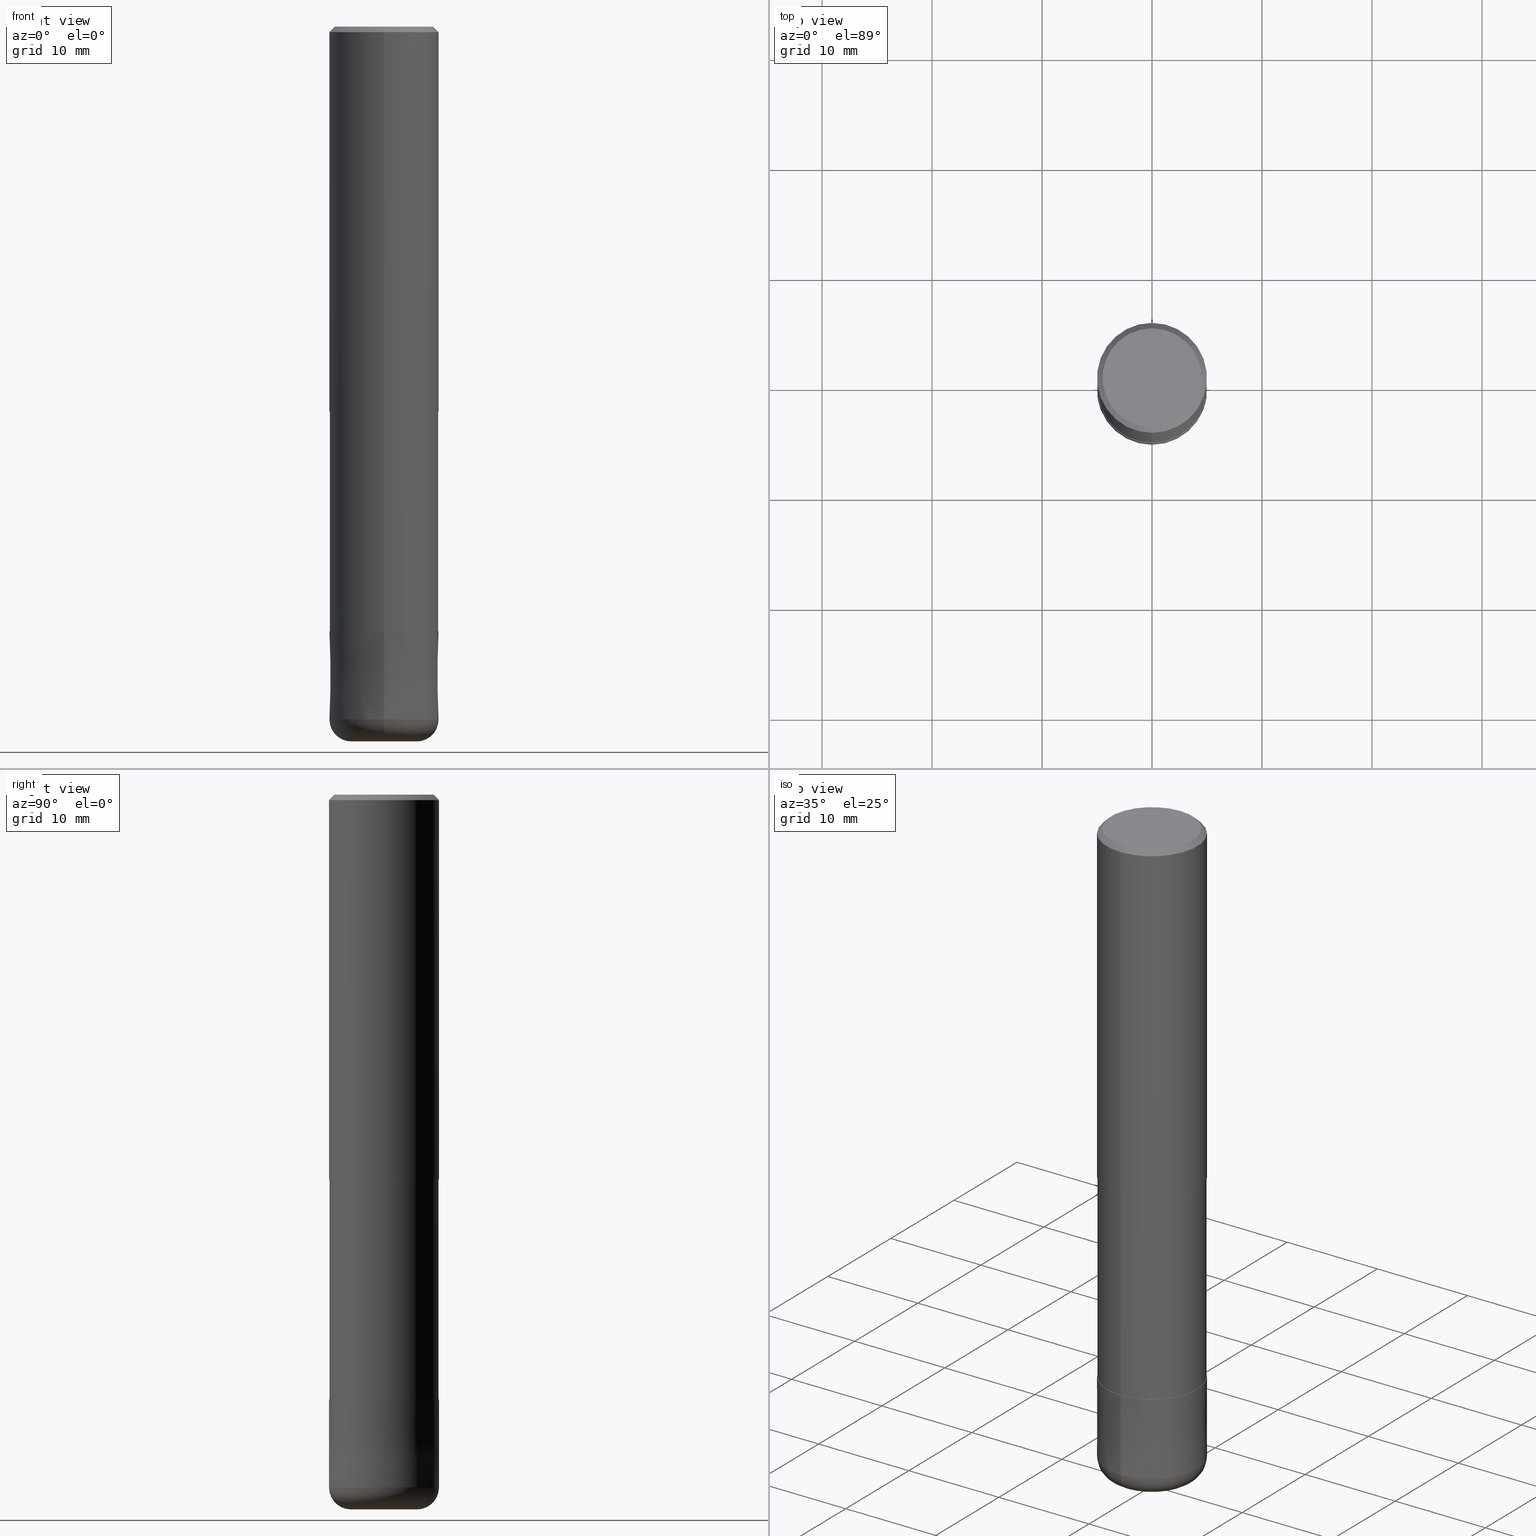
[diagram: canonical four-view strip — front | top / right | iso, engineering-drawing reading convention]
A machine part, canonical four-view strip (front | top / right | iso — engineering-drawing reading convention). The complete STEP part file that produces these views, byte-faithful:
ISO-10303-21;
HEADER;
FILE_DESCRIPTION(('no description'),'unknown implementation level');
FILE_NAME('HRRS4100-20-30S-Huellk.stp','  ',('CIMSOURCE GmbH'),('CADClick - KiM GmbH - www.kimweb.de'),'unknown preprocess','ACIS','unknown authorization');
FILE_SCHEMA(('automotive_design'));
ENDSEC;
DATA;
#1=MECHANICAL_DESIGN_GEOMETRIC_PRESENTATION_REPRESENTATION(' ',(#14,#15,#16,#17,#18,#19,#20,#21,#22,#23,#24,#25,#26,#27,#28,#29,#30,#31,#32,#33,#34,#35,#36,#37,#38,#39,#40,#41,#42,#43,#44,#45,#46,#47,#48,#49,#50,#51,#52,#53,#54,#55,#56,#57,#58,#59,#60,#61,#62,#63,#64,#65,#66,#67,#68,#69,#70,#71,#72),#10);
#2=PRODUCT_DEFINITION_CONTEXT('',#73,'design');
#3=APPLICATION_PROTOCOL_DEFINITION('INTERNATIONAL STANDARD','automotive_design',1994,#73);
#4=PRODUCT_CATEGORY_RELATIONSHIP('NONE','NONE',#74,#75);
#5=SHAPE_DEFINITION_REPRESENTATION(#76,#77);
#6=PRODUCT_DEFINITION_CONTEXT('',#78,'design');
#7=APPLICATION_PROTOCOL_DEFINITION('INTERNATIONAL STANDARD','automotive_design',1994,#78);
#8=PRODUCT_CATEGORY_RELATIONSHIP('NONE','NONE',#79,#80);
#9=SHAPE_DEFINITION_REPRESENTATION(#81,#82);
#10= (GEOMETRIC_REPRESENTATION_CONTEXT(3)GLOBAL_UNCERTAINTY_ASSIGNED_CONTEXT((#85))GLOBAL_UNIT_ASSIGNED_CONTEXT((#87,#88,#89))REPRESENTATION_CONTEXT('NONE','WORKSPACE'));
#14=STYLED_ITEM('',(#91),#92);
#15=STYLED_ITEM('',(#93),#94);
#16=STYLED_ITEM('',(#95),#96);
#17=STYLED_ITEM('',(#97),#98);
#18=STYLED_ITEM('',(#99),#100);
#19=STYLED_ITEM('',(#101),#102);
#20=STYLED_ITEM('',(#103),#104);
#21=STYLED_ITEM('',(#105),#106);
#22=STYLED_ITEM('',(#107),#108);
#23=STYLED_ITEM('',(#109),#110);
#24=STYLED_ITEM('',(#111),#112);
#25=STYLED_ITEM('',(#113),#114);
#26=STYLED_ITEM('',(#115),#116);
#27=STYLED_ITEM('',(#117),#118);
#28=STYLED_ITEM('',(#119),#120);
#29=STYLED_ITEM('',(#121),#122);
#30=STYLED_ITEM('',(#123),#124);
#31=STYLED_ITEM('',(#125),#126);
#32=STYLED_ITEM('',(#127),#128);
#33=STYLED_ITEM('',(#129),#130);
#34=STYLED_ITEM('',(#131),#132);
#35=STYLED_ITEM('',(#133),#134);
#36=STYLED_ITEM('',(#135),#136);
#37=STYLED_ITEM('',(#137),#138);
#38=STYLED_ITEM('',(#139),#140);
#39=STYLED_ITEM('',(#141),#142);
#40=STYLED_ITEM('',(#143),#144);
#41=STYLED_ITEM('',(#145),#146);
#42=STYLED_ITEM('',(#147),#148);
#43=STYLED_ITEM('',(#149),#150);
#44=STYLED_ITEM('',(#151),#152);
#45=STYLED_ITEM('',(#153),#154);
#46=STYLED_ITEM('',(#155),#156);
#47=STYLED_ITEM('',(#157),#158);
#48=STYLED_ITEM('',(#159),#160);
#49=STYLED_ITEM('',(#161),#162);
#50=STYLED_ITEM('',(#163),#164);
#51=STYLED_ITEM('',(#165),#166);
#52=STYLED_ITEM('',(#167),#168);
#53=STYLED_ITEM('',(#169),#170);
#54=STYLED_ITEM('',(#171),#172);
#55=STYLED_ITEM('',(#173),#174);
#56=STYLED_ITEM('',(#175),#176);
#57=STYLED_ITEM('',(#177),#178);
#58=STYLED_ITEM('',(#179),#180);
#59=STYLED_ITEM('',(#181),#182);
#60=STYLED_ITEM('',(#183),#184);
#61=STYLED_ITEM('',(#185),#186);
#62=STYLED_ITEM('',(#187),#188);
#63=STYLED_ITEM('',(#189),#190);
#64=STYLED_ITEM('',(#191),#192);
#65=STYLED_ITEM('',(#193),#194);
#66=STYLED_ITEM('',(#195),#196);
#67=STYLED_ITEM('',(#197),#198);
#68=STYLED_ITEM('',(#199),#200);
#69=STYLED_ITEM('',(#201),#202);
#70=STYLED_ITEM('',(#203),#204);
#71=STYLED_ITEM('',(#205),#206);
#72=STYLED_ITEM('',(#207),#208);
#73=APPLICATION_CONTEXT(' ');
#74=PRODUCT_CATEGORY('part','NONE');
#75=PRODUCT_RELATED_PRODUCT_CATEGORY('detail',' ',(#209));
#76=PRODUCT_DEFINITION_SHAPE('NONE','NONE',#210);
#77=ADVANCED_BREP_SHAPE_REPRESENTATION('1',(#154,#211),#10);
#78=APPLICATION_CONTEXT(' ');
#79=PRODUCT_CATEGORY('part','NONE');
#80=PRODUCT_RELATED_PRODUCT_CATEGORY('detail',' ',(#212));
#81=PRODUCT_DEFINITION_SHAPE('NONE','NONE',#213);
#82=ADVANCED_BREP_SHAPE_REPRESENTATION('2',(#146,#214),#10);
#85=UNCERTAINTY_MEASURE_WITH_UNIT(LENGTH_MEASURE(1.0E-006),#87,'','');
#87= (CONVERSION_BASED_UNIT('MILLIMETRE',#217)LENGTH_UNIT()NAMED_UNIT(#220));
#88= (NAMED_UNIT(#222)PLANE_ANGLE_UNIT()SI_UNIT($,.RADIAN.));
#89= (NAMED_UNIT(#222)SOLID_ANGLE_UNIT()SI_UNIT($,.STERADIAN.));
#91=PRESENTATION_STYLE_ASSIGNMENT((#228));
#92=EDGE_CURVE('',#124,#136,#229,.T.);
#93=PRESENTATION_STYLE_ASSIGNMENT((#230));
#94=EDGE_CURVE('',#192,#186,#231,.T.);
#95=PRESENTATION_STYLE_ASSIGNMENT((#232));
#96=EDGE_CURVE('',#190,#206,#233,.T.);
#97=PRESENTATION_STYLE_ASSIGNMENT((#234));
#98=EDGE_CURVE('',#130,#208,#235,.T.);
#99=PRESENTATION_STYLE_ASSIGNMENT((#236));
#100=EDGE_CURVE('',#156,#192,#237,.T.);
#101=PRESENTATION_STYLE_ASSIGNMENT((#238));
#102=ADVANCED_FACE('',(#239),#240,.T.);
#103=PRESENTATION_STYLE_ASSIGNMENT((#241));
#104=ADVANCED_FACE('',(#242),#243,.T.);
#105=PRESENTATION_STYLE_ASSIGNMENT((#244));
#106=ADVANCED_FACE('',(#245),#246,.T.);
#107=PRESENTATION_STYLE_ASSIGNMENT((#247));
#108=VERTEX_POINT('',#248);
#109=PRESENTATION_STYLE_ASSIGNMENT((#249));
#110=ADVANCED_FACE('',(#250),#251,.T.);
#111=PRESENTATION_STYLE_ASSIGNMENT((#252));
#112=EDGE_CURVE('',#108,#116,#253,.T.);
#113=PRESENTATION_STYLE_ASSIGNMENT((#254));
#114=ADVANCED_FACE('',(#255),#256,.T.);
#115=PRESENTATION_STYLE_ASSIGNMENT((#257));
#116=VERTEX_POINT('',#258);
#117=PRESENTATION_STYLE_ASSIGNMENT((#259));
#118=EDGE_CURVE('',#136,#124,#260,.T.);
#119=PRESENTATION_STYLE_ASSIGNMENT((#261));
#120=ADVANCED_FACE('',(#262),#263,.T.);
#121=PRESENTATION_STYLE_ASSIGNMENT((#264));
#122=EDGE_CURVE('',#208,#130,#265,.T.);
#123=PRESENTATION_STYLE_ASSIGNMENT((#266));
#124=VERTEX_POINT('',#267);
#125=PRESENTATION_STYLE_ASSIGNMENT((#268));
#126=ADVANCED_FACE('',(#269),#270,.T.);
#127=PRESENTATION_STYLE_ASSIGNMENT((#271));
#128=EDGE_CURVE('',#186,#192,#272,.T.);
#129=PRESENTATION_STYLE_ASSIGNMENT((#273));
#130=VERTEX_POINT('',#274);
#131=PRESENTATION_STYLE_ASSIGNMENT((#275));
#132=VERTEX_POINT('',#276);
#133=PRESENTATION_STYLE_ASSIGNMENT((#277));
#134=ADVANCED_FACE('',(#278),#279,.T.);
#135=PRESENTATION_STYLE_ASSIGNMENT((#280));
#136=VERTEX_POINT('',#281);
#137=PRESENTATION_STYLE_ASSIGNMENT((#282));
#138=ADVANCED_FACE('',(#283),#284,.T.);
#139=PRESENTATION_STYLE_ASSIGNMENT((#285));
#140=EDGE_CURVE('',#124,#208,#286,.T.);
#141=PRESENTATION_STYLE_ASSIGNMENT((#287));
#142=EDGE_CURVE('',#188,#162,#288,.T.);
#143=PRESENTATION_STYLE_ASSIGNMENT((#289));
#144=VERTEX_POINT('',#290);
#145=PRESENTATION_STYLE_ASSIGNMENT((#291));
#146=MANIFOLD_SOLID_BREP('2',#292);
#147=PRESENTATION_STYLE_ASSIGNMENT((#293));
#148=VERTEX_POINT('',#294);
#149=PRESENTATION_STYLE_ASSIGNMENT((#295));
#150=EDGE_CURVE('',#188,#186,#296,.T.);
#151=PRESENTATION_STYLE_ASSIGNMENT((#297));
#152=EDGE_CURVE('',#116,#148,#298,.T.);
#153=PRESENTATION_STYLE_ASSIGNMENT((#299));
#154=MANIFOLD_SOLID_BREP('1',#300);
#155=PRESENTATION_STYLE_ASSIGNMENT((#301));
#156=VERTEX_POINT('',#302);
#157=PRESENTATION_STYLE_ASSIGNMENT((#303));
#158=EDGE_CURVE('',#144,#156,#304,.T.);
#159=PRESENTATION_STYLE_ASSIGNMENT((#305));
#160=EDGE_CURVE('',#206,#190,#306,.T.);
#161=PRESENTATION_STYLE_ASSIGNMENT((#307));
#162=VERTEX_POINT('',#308);
#163=PRESENTATION_STYLE_ASSIGNMENT((#309));
#164=EDGE_CURVE('',#132,#108,#310,.T.);
#165=PRESENTATION_STYLE_ASSIGNMENT((#311));
#166=EDGE_CURVE('',#132,#190,#312,.T.);
#167=PRESENTATION_STYLE_ASSIGNMENT((#313));
#168=EDGE_CURVE('',#148,#132,#314,.T.);
#169=PRESENTATION_STYLE_ASSIGNMENT((#315));
#170=EDGE_CURVE('',#132,#148,#316,.T.);
#171=PRESENTATION_STYLE_ASSIGNMENT((#317));
#172=ADVANCED_FACE('',(#318),#319,.T.);
#173=PRESENTATION_STYLE_ASSIGNMENT((#320));
#174=ADVANCED_FACE('',(#321,#322),#323,.T.);
#175=PRESENTATION_STYLE_ASSIGNMENT((#324));
#176=EDGE_CURVE('',#186,#144,#325,.T.);
#177=PRESENTATION_STYLE_ASSIGNMENT((#326));
#178=ADVANCED_FACE('',(#327),#328,.T.);
#179=PRESENTATION_STYLE_ASSIGNMENT((#329));
#180=EDGE_CURVE('',#116,#108,#330,.T.);
#181=PRESENTATION_STYLE_ASSIGNMENT((#331));
#182=EDGE_CURVE('',#192,#162,#332,.T.);
#183=PRESENTATION_STYLE_ASSIGNMENT((#333));
#184=ADVANCED_FACE('',(#334),#335,.T.);
#185=PRESENTATION_STYLE_ASSIGNMENT((#336));
#186=VERTEX_POINT('',#337);
#187=PRESENTATION_STYLE_ASSIGNMENT((#338));
#188=VERTEX_POINT('',#339);
#189=PRESENTATION_STYLE_ASSIGNMENT((#340));
#190=VERTEX_POINT('',#341);
#191=PRESENTATION_STYLE_ASSIGNMENT((#342));
#192=VERTEX_POINT('',#343);
#193=PRESENTATION_STYLE_ASSIGNMENT((#344));
#194=ADVANCED_FACE('',(#345),#346,.T.);
#195=PRESENTATION_STYLE_ASSIGNMENT((#347));
#196=EDGE_CURVE('',#156,#144,#348,.T.);
#197=PRESENTATION_STYLE_ASSIGNMENT((#349));
#198=EDGE_CURVE('',#130,#136,#350,.T.);
#199=PRESENTATION_STYLE_ASSIGNMENT((#351));
#200=ADVANCED_FACE('',(#352),#353,.T.);
#201=PRESENTATION_STYLE_ASSIGNMENT((#354));
#202=EDGE_CURVE('',#162,#188,#355,.T.);
#203=PRESENTATION_STYLE_ASSIGNMENT((#356));
#204=EDGE_CURVE('',#206,#148,#357,.T.);
#205=PRESENTATION_STYLE_ASSIGNMENT((#358));
#206=VERTEX_POINT('',#359);
#207=PRESENTATION_STYLE_ASSIGNMENT((#360));
#208=VERTEX_POINT('',#361);
#209=PRODUCT('1','1','PART-1-DESC',(#362));
#210=PRODUCT_DEFINITION('NONE','NONE',#363,#2);
#211=AXIS2_PLACEMENT_3D('',#364,#365,#366);
#212=PRODUCT('2','2','PART-2-DESC',(#367));
#213=PRODUCT_DEFINITION('NONE','NONE',#368,#6);
#214=AXIS2_PLACEMENT_3D('',#369,#370,#371);
#217=LENGTH_MEASURE_WITH_UNIT(LENGTH_MEASURE(1.0),#372);
#220=DIMENSIONAL_EXPONENTS(1.0,0.0,0.0,0.0,0.0,0.0,0.0);
#222=DIMENSIONAL_EXPONENTS(0.0,0.0,0.0,0.0,0.0,0.0,0.0);
#228=CURVE_STYLE('',#373,POSITIVE_LENGTH_MEASURE(1.0E-006),#374);
#229=CIRCLE('',#375,4.95995);
#230=CURVE_STYLE('',#376,POSITIVE_LENGTH_MEASURE(1.0E-006),#377);
#231=CIRCLE('',#378,5.0);
#232=CURVE_STYLE('',#379,POSITIVE_LENGTH_MEASURE(1.0E-006),#380);
#233=CIRCLE('',#381,3.0);
#234=CURVE_STYLE('',#382,POSITIVE_LENGTH_MEASURE(1.0E-006),#383);
#235=CIRCLE('',#384,4.95995);
#236=CURVE_STYLE('',#385,POSITIVE_LENGTH_MEASURE(1.0E-006),#386);
#237=LINE('',#387,#388);
#238=SURFACE_STYLE_USAGE(.BOTH.,#389);
#239=FACE_OUTER_BOUND('',#390,.T.);
#240=PLANE('',#391);
#241=SURFACE_STYLE_USAGE(.BOTH.,#392);
#242=FACE_OUTER_BOUND('',#393,.T.);
#243=PLANE('',#394);
#244=SURFACE_STYLE_USAGE(.BOTH.,#395);
#245=FACE_OUTER_BOUND('',#396,.T.);
#246=CYLINDRICAL_SURFACE('',#397,5.0);
#247=POINT_STYLE(' ',#398,POSITIVE_LENGTH_MEASURE(1.0E-006),#399);
#248=CARTESIAN_POINT('',(6.1229093084765E-016,-4.9999,-55.0));
#249=SURFACE_STYLE_USAGE(.BOTH.,#400);
#250=FACE_OUTER_BOUND('',#401,.T.);
#251=CONICAL_SURFACE('',#402,4.75,0.785398163397448);
#252=CURVE_STYLE('',#403,POSITIVE_LENGTH_MEASURE(1.0E-006),#404);
#253=CIRCLE('',#405,4.9999);
#254=SURFACE_STYLE_USAGE(.BOTH.,#406);
#255=FACE_OUTER_BOUND('',#407,.T.);
#256=TOROIDAL_SURFACE('',#408,3.0,2.0);
#257=POINT_STYLE(' ',#409,POSITIVE_LENGTH_MEASURE(1.0E-006),#410);
#258=CARTESIAN_POINT('',(0.0,4.9999,-55.0));
#259=CURVE_STYLE('',#411,POSITIVE_LENGTH_MEASURE(1.0E-006),#412);
#260=CIRCLE('',#413,4.95995);
#261=SURFACE_STYLE_USAGE(.BOTH.,#414);
#262=FACE_OUTER_BOUND('',#415,.T.);
#263=CONICAL_SURFACE('',#416,4.99995,1.24999999993198E-005);
#264=CURVE_STYLE('',#417,POSITIVE_LENGTH_MEASURE(1.0E-006),#418);
#265=CIRCLE('',#419,4.95995);
#266=POINT_STYLE(' ',#420,POSITIVE_LENGTH_MEASURE(1.0E-006),#421);
#267=CARTESIAN_POINT('',(6.0739862846413E-016,-4.95995,-55.0));
#268=SURFACE_STYLE_USAGE(.BOTH.,#422);
#269=FACE_OUTER_BOUND('',#423,.T.);
#270=TOROIDAL_SURFACE('',#424,3.0,2.0);
#271=CURVE_STYLE('',#425,POSITIVE_LENGTH_MEASURE(1.0E-006),#426);
#272=CIRCLE('',#427,5.0);
#273=POINT_STYLE(' ',#428,POSITIVE_LENGTH_MEASURE(1.0E-006),#429);
#274=CARTESIAN_POINT('',(0.0,4.95995,-35.0));
#275=POINT_STYLE(' ',#430,POSITIVE_LENGTH_MEASURE(1.0E-006),#431);
#276=CARTESIAN_POINT('',(6.12303176911189E-016,-5.0,-63.0));
#277=SURFACE_STYLE_USAGE(.BOTH.,#432);
#278=FACE_OUTER_BOUND('',#433,.T.);
#279=CYLINDRICAL_SURFACE('',#434,4.95995);
#280=POINT_STYLE(' ',#435,POSITIVE_LENGTH_MEASURE(1.0E-006),#436);
#281=CARTESIAN_POINT('',(0.0,4.95995,-55.0));
#282=SURFACE_STYLE_USAGE(.BOTH.,#437);
#283=FACE_OUTER_BOUND('',#438,.T.);
#284=PLANE('',#439);
#285=CURVE_STYLE('',#440,POSITIVE_LENGTH_MEASURE(1.0E-006),#441);
#286=LINE('',#442,#443);
#287=CURVE_STYLE('',#444,POSITIVE_LENGTH_MEASURE(1.0E-006),#445);
#288=CIRCLE('',#446,5.0);
#289=POINT_STYLE(' ',#447,POSITIVE_LENGTH_MEASURE(1.0E-006),#448);
#290=CARTESIAN_POINT('',(5.5107285922007E-016,-4.5,0.0));
#291=SURFACE_STYLE_USAGE(.BOTH.,#449);
#292=CLOSED_SHELL('',(#114,#200,#104,#120,#126,#138));
#293=POINT_STYLE(' ',#450,POSITIVE_LENGTH_MEASURE(1.0E-006),#451);
#294=CARTESIAN_POINT('',(0.0,5.0,-63.0));
#295=CURVE_STYLE('',#452,POSITIVE_LENGTH_MEASURE(1.0E-006),#453);
#296=LINE('',#454,#455);
#297=CURVE_STYLE('',#456,POSITIVE_LENGTH_MEASURE(1.0E-006),#457);
#298=LINE('',#458,#459);
#299=SURFACE_STYLE_USAGE(.BOTH.,#460);
#300=CLOSED_SHELL('',(#178,#106,#184,#174,#172,#110,#194,#134,#102));
#301=POINT_STYLE(' ',#461,POSITIVE_LENGTH_MEASURE(1.0E-006),#462);
#302=CARTESIAN_POINT('',(0.0,4.5,0.0));
#303=CURVE_STYLE('',#463,POSITIVE_LENGTH_MEASURE(1.0E-006),#464);
#304=CIRCLE('',#465,4.5);
#305=CURVE_STYLE('',#466,POSITIVE_LENGTH_MEASURE(1.0E-006),#467);
#306=CIRCLE('',#468,3.0);
#307=POINT_STYLE(' ',#469,POSITIVE_LENGTH_MEASURE(1.0E-006),#470);
#308=CARTESIAN_POINT('',(0.0,5.0,-35.0));
#309=CURVE_STYLE('',#471,POSITIVE_LENGTH_MEASURE(1.0E-006),#472);
#310=LINE('',#473,#474);
#311=CURVE_STYLE('',#475,POSITIVE_LENGTH_MEASURE(1.0E-006),#476);
#312=CIRCLE('',#477,2.0);
#313=CURVE_STYLE('',#478,POSITIVE_LENGTH_MEASURE(1.0E-006),#479);
#314=CIRCLE('',#480,5.0);
#315=CURVE_STYLE('',#481,POSITIVE_LENGTH_MEASURE(1.0E-006),#482);
#316=CIRCLE('',#483,5.0);
#317=SURFACE_STYLE_USAGE(.BOTH.,#484);
#318=FACE_OUTER_BOUND('',#485,.T.);
#319=PLANE('',#486);
#320=SURFACE_STYLE_USAGE(.BOTH.,#487);
#321=FACE_OUTER_BOUND('',#488,.T.);
#322=FACE_BOUND('',#489,.T.);
#323=PLANE('',#490);
#324=CURVE_STYLE('',#491,POSITIVE_LENGTH_MEASURE(1.0E-006),#492);
#325=LINE('',#493,#494);
#326=SURFACE_STYLE_USAGE(.BOTH.,#495);
#327=FACE_OUTER_BOUND('',#496,.T.);
#328=CYLINDRICAL_SURFACE('',#497,4.95995);
#329=CURVE_STYLE('',#498,POSITIVE_LENGTH_MEASURE(1.0E-006),#499);
#330=CIRCLE('',#500,4.9999);
#331=CURVE_STYLE('',#501,POSITIVE_LENGTH_MEASURE(1.0E-006),#502);
#332=LINE('',#503,#504);
#333=SURFACE_STYLE_USAGE(.BOTH.,#505);
#334=FACE_OUTER_BOUND('',#506,.T.);
#335=CONICAL_SURFACE('',#507,4.75,0.785398163397448);
#336=POINT_STYLE(' ',#508,POSITIVE_LENGTH_MEASURE(1.0E-006),#509);
#337=CARTESIAN_POINT('',(6.12303176911189E-016,-5.0,-0.5));
#338=POINT_STYLE(' ',#510,POSITIVE_LENGTH_MEASURE(1.0E-006),#511);
#339=CARTESIAN_POINT('',(6.12303176911189E-016,-5.0,-35.0));
#340=POINT_STYLE(' ',#512,POSITIVE_LENGTH_MEASURE(1.0E-006),#513);
#341=CARTESIAN_POINT('',(3.67381906146713E-016,-3.0,-65.0));
#342=POINT_STYLE(' ',#514,POSITIVE_LENGTH_MEASURE(1.0E-006),#515);
#343=CARTESIAN_POINT('',(0.0,5.0,-0.5));
#344=SURFACE_STYLE_USAGE(.BOTH.,#516);
#345=FACE_OUTER_BOUND('',#517,.T.);
#346=CYLINDRICAL_SURFACE('',#518,5.0);
#347=CURVE_STYLE('',#519,POSITIVE_LENGTH_MEASURE(1.0E-006),#520);
#348=CIRCLE('',#521,4.5);
#349=CURVE_STYLE('',#522,POSITIVE_LENGTH_MEASURE(1.0E-006),#523);
#350=LINE('',#524,#525);
#351=SURFACE_STYLE_USAGE(.BOTH.,#526);
#352=FACE_OUTER_BOUND('',#527,.T.);
#353=CONICAL_SURFACE('',#528,4.99995,1.24999999993198E-005);
#354=CURVE_STYLE('',#529,POSITIVE_LENGTH_MEASURE(1.0E-006),#530);
#355=CIRCLE('',#531,5.0);
#356=CURVE_STYLE('',#532,POSITIVE_LENGTH_MEASURE(1.0E-006),#533);
#357=CIRCLE('',#534,2.0);
#358=POINT_STYLE(' ',#535,POSITIVE_LENGTH_MEASURE(1.0E-006),#536);
#359=CARTESIAN_POINT('',(0.0,3.0,-65.0));
#360=POINT_STYLE(' ',#537,POSITIVE_LENGTH_MEASURE(1.0E-006),#538);
#361=CARTESIAN_POINT('',(6.0739862846413E-016,-4.95995,-35.0));
#362=PRODUCT_CONTEXT('',#73,'mechanical');
#363=PRODUCT_DEFINITION_FORMATION_WITH_SPECIFIED_SOURCE(' ','NONE',#209,.NOT_KNOWN.);
#364=CARTESIAN_POINT('',(0.0,0.0,0.0));
#365=DIRECTION('',(0.0,0.0,1.0));
#366=DIRECTION('',(1.0,0.0,0.0));
#367=PRODUCT_CONTEXT('',#78,'mechanical');
#368=PRODUCT_DEFINITION_FORMATION_WITH_SPECIFIED_SOURCE(' ','NONE',#212,.NOT_KNOWN.);
#369=CARTESIAN_POINT('',(0.0,0.0,0.0));
#370=DIRECTION('',(0.0,0.0,1.0));
#371=DIRECTION('',(1.0,0.0,0.0));
#372= (NAMED_UNIT(#220)LENGTH_UNIT()SI_UNIT(.MILLI.,.METRE.));
#373=DRAUGHTING_PRE_DEFINED_CURVE_FONT('continuous');
#374=COLOUR_RGB('',0.498039215803146,0.498039215803146,0.498039215803146);
#375=AXIS2_PLACEMENT_3D('',#540,#541,#542);
#376=DRAUGHTING_PRE_DEFINED_CURVE_FONT('continuous');
#377=COLOUR_RGB('',0.498039215803146,0.498039215803146,0.498039215803146);
#378=AXIS2_PLACEMENT_3D('',#543,#544,#545);
#379=DRAUGHTING_PRE_DEFINED_CURVE_FONT('continuous');
#380=COLOUR_RGB('',0.800000011920929,0.800000011920929,0.800000011920929);
#381=AXIS2_PLACEMENT_3D('',#546,#547,#548);
#382=DRAUGHTING_PRE_DEFINED_CURVE_FONT('continuous');
#383=COLOUR_RGB('',0.498039215803146,0.498039215803146,0.498039215803146);
#384=AXIS2_PLACEMENT_3D('',#549,#550,#551);
#385=DRAUGHTING_PRE_DEFINED_CURVE_FONT('continuous');
#386=COLOUR_RGB('',0.498039215803146,0.498039215803146,0.498039215803146);
#387=CARTESIAN_POINT('',(-5.81688018065629E-016,4.75,-0.25));
#388=VECTOR('',#552,1.0);
#389=SURFACE_SIDE_STYLE('',(#553));
#390=EDGE_LOOP('',(#554,#555));
#391=AXIS2_PLACEMENT_3D('',#556,#557,#558);
#392=SURFACE_SIDE_STYLE('',(#559));
#393=EDGE_LOOP('',(#560,#561));
#394=AXIS2_PLACEMENT_3D('',#562,#563,#564);
#395=SURFACE_SIDE_STYLE('',(#565));
#396=EDGE_LOOP('',(#566,#567,#568,#569));
#397=AXIS2_PLACEMENT_3D('',#570,#571,#572);
#398=PRE_DEFINED_MARKER('');
#399=COLOUR_RGB('',0.800000011920929,0.800000011920929,0.800000011920929);
#400=SURFACE_SIDE_STYLE('',(#573));
#401=EDGE_LOOP('',(#574,#575,#576,#577));
#402=AXIS2_PLACEMENT_3D('',#578,#579,#580);
#403=DRAUGHTING_PRE_DEFINED_CURVE_FONT('continuous');
#404=COLOUR_RGB('',0.800000011920929,0.800000011920929,0.800000011920929);
#405=AXIS2_PLACEMENT_3D('',#581,#582,#583);
#406=SURFACE_SIDE_STYLE('',(#584));
#407=EDGE_LOOP('',(#585,#586,#587,#588));
#408=AXIS2_PLACEMENT_3D('',#589,#590,#591);
#409=PRE_DEFINED_MARKER('');
#410=COLOUR_RGB('',0.800000011920929,0.800000011920929,0.800000011920929);
#411=DRAUGHTING_PRE_DEFINED_CURVE_FONT('continuous');
#412=COLOUR_RGB('',0.498039215803146,0.498039215803146,0.498039215803146);
#413=AXIS2_PLACEMENT_3D('',#592,#593,#594);
#414=SURFACE_SIDE_STYLE('',(#595));
#415=EDGE_LOOP('',(#596,#597,#598,#599));
#416=AXIS2_PLACEMENT_3D('',#600,#601,#602);
#417=DRAUGHTING_PRE_DEFINED_CURVE_FONT('continuous');
#418=COLOUR_RGB('',0.498039215803146,0.498039215803146,0.498039215803146);
#419=AXIS2_PLACEMENT_3D('',#603,#604,#605);
#420=PRE_DEFINED_MARKER('');
#421=COLOUR_RGB('',0.498039215803146,0.498039215803146,0.498039215803146);
#422=SURFACE_SIDE_STYLE('',(#606));
#423=EDGE_LOOP('',(#607,#608,#609,#610));
#424=AXIS2_PLACEMENT_3D('',#611,#612,#613);
#425=DRAUGHTING_PRE_DEFINED_CURVE_FONT('continuous');
#426=COLOUR_RGB('',0.498039215803146,0.498039215803146,0.498039215803146);
#427=AXIS2_PLACEMENT_3D('',#614,#615,#616);
#428=PRE_DEFINED_MARKER('');
#429=COLOUR_RGB('',0.498039215803146,0.498039215803146,0.498039215803146);
#430=PRE_DEFINED_MARKER('');
#431=COLOUR_RGB('',0.800000011920929,0.800000011920929,0.800000011920929);
#432=SURFACE_SIDE_STYLE('',(#617));
#433=EDGE_LOOP('',(#618,#619,#620,#621));
#434=AXIS2_PLACEMENT_3D('',#622,#623,#624);
#435=PRE_DEFINED_MARKER('');
#436=COLOUR_RGB('',0.498039215803146,0.498039215803146,0.498039215803146);
#437=SURFACE_SIDE_STYLE('',(#625));
#438=EDGE_LOOP('',(#626,#627));
#439=AXIS2_PLACEMENT_3D('',#628,#629,#630);
#440=DRAUGHTING_PRE_DEFINED_CURVE_FONT('continuous');
#441=COLOUR_RGB('',0.498039215803146,0.498039215803146,0.498039215803146);
#442=CARTESIAN_POINT('',(6.0739862846413E-016,-4.95995,-45.0));
#443=VECTOR('',#631,1.0);
#444=DRAUGHTING_PRE_DEFINED_CURVE_FONT('continuous');
#445=COLOUR_RGB('',0.498039215803146,0.498039215803146,0.498039215803146);
#446=AXIS2_PLACEMENT_3D('',#632,#633,#634);
#447=PRE_DEFINED_MARKER('');
#448=COLOUR_RGB('',0.498039215803146,0.498039215803146,0.498039215803146);
#449=SURFACE_SIDE_STYLE('',(#635));
#450=PRE_DEFINED_MARKER('');
#451=COLOUR_RGB('',0.800000011920929,0.800000011920929,0.800000011920929);
#452=DRAUGHTING_PRE_DEFINED_CURVE_FONT('continuous');
#453=COLOUR_RGB('',0.498039215803146,0.498039215803146,0.498039215803146);
#454=CARTESIAN_POINT('',(6.12303176911189E-016,-5.0,-17.75));
#455=VECTOR('',#636,1.0);
#456=DRAUGHTING_PRE_DEFINED_CURVE_FONT('continuous');
#457=COLOUR_RGB('',0.800000011920929,0.800000011920929,0.800000011920929);
#458=CARTESIAN_POINT('',(-6.1229705387942E-016,4.99995,-59.0));
#459=VECTOR('',#637,1.0);
#460=SURFACE_SIDE_STYLE('',(#638));
#461=PRE_DEFINED_MARKER('');
#462=COLOUR_RGB('',0.498039215803146,0.498039215803146,0.498039215803146);
#463=DRAUGHTING_PRE_DEFINED_CURVE_FONT('continuous');
#464=COLOUR_RGB('',0.498039215803146,0.498039215803146,0.498039215803146);
#465=AXIS2_PLACEMENT_3D('',#639,#640,#641);
#466=DRAUGHTING_PRE_DEFINED_CURVE_FONT('continuous');
#467=COLOUR_RGB('',0.800000011920929,0.800000011920929,0.800000011920929);
#468=AXIS2_PLACEMENT_3D('',#642,#643,#644);
#469=PRE_DEFINED_MARKER('');
#470=COLOUR_RGB('',0.498039215803146,0.498039215803146,0.498039215803146);
#471=DRAUGHTING_PRE_DEFINED_CURVE_FONT('continuous');
#472=COLOUR_RGB('',0.800000011920929,0.800000011920929,0.800000011920929);
#473=CARTESIAN_POINT('',(6.1229705387942E-016,-4.99995,-59.0));
#474=VECTOR('',#645,1.0);
#475=DRAUGHTING_PRE_DEFINED_CURVE_FONT('continuous');
#476=COLOUR_RGB('',0.800000011920929,0.800000011920929,0.800000011920929);
#477=AXIS2_PLACEMENT_3D('',#646,#647,#648);
#478=DRAUGHTING_PRE_DEFINED_CURVE_FONT('continuous');
#479=COLOUR_RGB('',0.800000011920929,0.800000011920929,0.800000011920929);
#480=AXIS2_PLACEMENT_3D('',#649,#650,#651);
#481=DRAUGHTING_PRE_DEFINED_CURVE_FONT('continuous');
#482=COLOUR_RGB('',0.800000011920929,0.800000011920929,0.800000011920929);
#483=AXIS2_PLACEMENT_3D('',#652,#653,#654);
#484=SURFACE_SIDE_STYLE('',(#655));
#485=EDGE_LOOP('',(#656,#657));
#486=AXIS2_PLACEMENT_3D('',#658,#659,#660);
#487=SURFACE_SIDE_STYLE('',(#661));
#488=EDGE_LOOP('',(#662,#663));
#489=EDGE_LOOP('',(#664,#665));
#490=AXIS2_PLACEMENT_3D('',#666,#667,#668);
#491=DRAUGHTING_PRE_DEFINED_CURVE_FONT('continuous');
#492=COLOUR_RGB('',0.498039215803146,0.498039215803146,0.498039215803146);
#493=CARTESIAN_POINT('',(5.81688018065629E-016,-4.75,-0.25));
#494=VECTOR('',#669,1.0);
#495=SURFACE_SIDE_STYLE('',(#670));
#496=EDGE_LOOP('',(#671,#672,#673,#674));
#497=AXIS2_PLACEMENT_3D('',#675,#676,#677);
#498=DRAUGHTING_PRE_DEFINED_CURVE_FONT('continuous');
#499=COLOUR_RGB('',0.800000011920929,0.800000011920929,0.800000011920929);
#500=AXIS2_PLACEMENT_3D('',#678,#679,#680);
#501=DRAUGHTING_PRE_DEFINED_CURVE_FONT('continuous');
#502=COLOUR_RGB('',0.498039215803146,0.498039215803146,0.498039215803146);
#503=CARTESIAN_POINT('',(-6.12303176911189E-016,5.0,-17.75));
#504=VECTOR('',#681,1.0);
#505=SURFACE_SIDE_STYLE('',(#682));
#506=EDGE_LOOP('',(#683,#684,#685,#686));
#507=AXIS2_PLACEMENT_3D('',#687,#688,#689);
#508=PRE_DEFINED_MARKER('');
#509=COLOUR_RGB('',0.498039215803146,0.498039215803146,0.498039215803146);
#510=PRE_DEFINED_MARKER('');
#511=COLOUR_RGB('',0.498039215803146,0.498039215803146,0.498039215803146);
#512=PRE_DEFINED_MARKER('');
#513=COLOUR_RGB('',0.800000011920929,0.800000011920929,0.800000011920929);
#514=PRE_DEFINED_MARKER('');
#515=COLOUR_RGB('',0.498039215803146,0.498039215803146,0.498039215803146);
#516=SURFACE_SIDE_STYLE('',(#690));
#517=EDGE_LOOP('',(#691,#692,#693,#694));
#518=AXIS2_PLACEMENT_3D('',#695,#696,#697);
#519=DRAUGHTING_PRE_DEFINED_CURVE_FONT('continuous');
#520=COLOUR_RGB('',0.498039215803146,0.498039215803146,0.498039215803146);
#521=AXIS2_PLACEMENT_3D('',#698,#699,#700);
#522=DRAUGHTING_PRE_DEFINED_CURVE_FONT('continuous');
#523=COLOUR_RGB('',0.498039215803146,0.498039215803146,0.498039215803146);
#524=CARTESIAN_POINT('',(-6.0739862846413E-016,4.95995,-45.0));
#525=VECTOR('',#701,1.0);
#526=SURFACE_SIDE_STYLE('',(#702));
#527=EDGE_LOOP('',(#703,#704,#705,#706));
#528=AXIS2_PLACEMENT_3D('',#707,#708,#709);
#529=DRAUGHTING_PRE_DEFINED_CURVE_FONT('continuous');
#530=COLOUR_RGB('',0.498039215803146,0.498039215803146,0.498039215803146);
#531=AXIS2_PLACEMENT_3D('',#710,#711,#712);
#532=DRAUGHTING_PRE_DEFINED_CURVE_FONT('continuous');
#533=COLOUR_RGB('',0.800000011920929,0.800000011920929,0.800000011920929);
#534=AXIS2_PLACEMENT_3D('',#713,#714,#715);
#535=PRE_DEFINED_MARKER('');
#536=COLOUR_RGB('',0.800000011920929,0.800000011920929,0.800000011920929);
#537=PRE_DEFINED_MARKER('');
#538=COLOUR_RGB('',0.498039215803146,0.498039215803146,0.498039215803146);
#540=CARTESIAN_POINT('',(0.0,0.0,-55.0));
#541=DIRECTION('',(0.0,0.0,-1.0));
#542=DIRECTION('',(0.0,1.0,0.0));
#543=CARTESIAN_POINT('',(0.0,0.0,-0.5));
#544=DIRECTION('',(0.0,0.0,-1.0));
#545=DIRECTION('',(0.0,1.0,0.0));
#546=CARTESIAN_POINT('',(0.0,0.0,-65.0));
#547=DIRECTION('',(0.0,0.0,-1.0));
#548=DIRECTION('',(0.0,1.0,0.0));
#549=CARTESIAN_POINT('',(0.0,0.0,-35.0));
#550=DIRECTION('',(0.0,0.0,-1.0));
#551=DIRECTION('',(0.0,1.0,0.0));
#552=DIRECTION('',(-8.65927457071936E-017,0.707106781186548,-0.707106781186548));
#553=SURFACE_STYLE_FILL_AREA(#716);
#554=ORIENTED_EDGE('',*,*,#118,.T.);
#555=ORIENTED_EDGE('',*,*,#92,.T.);
#556=CARTESIAN_POINT('',(0.0,2.479975,-55.0));
#557=DIRECTION('',(0.0,0.0,-1.0));
#558=DIRECTION('',(0.0,1.0,0.0));
#559=SURFACE_STYLE_FILL_AREA(#717);
#560=ORIENTED_EDGE('',*,*,#180,.F.);
#561=ORIENTED_EDGE('',*,*,#112,.F.);
#562=CARTESIAN_POINT('',(0.0,2.49995,-55.0));
#563=DIRECTION('',(-0.0,0.0,1.0));
#564=DIRECTION('',(0.0,-1.0,0.0));
#565=SURFACE_STYLE_FILL_AREA(#718);
#566=ORIENTED_EDGE('',*,*,#182,.F.);
#567=ORIENTED_EDGE('',*,*,#94,.T.);
#568=ORIENTED_EDGE('',*,*,#150,.F.);
#569=ORIENTED_EDGE('',*,*,#202,.F.);
#570=CARTESIAN_POINT('',(0.0,0.0,-17.75));
#571=DIRECTION('',(-0.0,-0.0,1.0));
#572=DIRECTION('',(0.0,1.0,0.0));
#573=SURFACE_STYLE_FILL_AREA(#719);
#574=ORIENTED_EDGE('',*,*,#100,.T.);
#575=ORIENTED_EDGE('',*,*,#128,.F.);
#576=ORIENTED_EDGE('',*,*,#176,.T.);
#577=ORIENTED_EDGE('',*,*,#158,.T.);
#578=CARTESIAN_POINT('',(0.0,0.0,-0.25));
#579=DIRECTION('',(0.0,-0.0,-1.0));
#580=DIRECTION('',(0.0,1.0,0.0));
#581=CARTESIAN_POINT('',(0.0,0.0,-55.0));
#582=DIRECTION('',(0.0,0.0,-1.0));
#583=DIRECTION('',(0.0,1.0,0.0));
#584=SURFACE_STYLE_FILL_AREA(#720);
#585=ORIENTED_EDGE('',*,*,#166,.F.);
#586=ORIENTED_EDGE('',*,*,#170,.T.);
#587=ORIENTED_EDGE('',*,*,#204,.F.);
#588=ORIENTED_EDGE('',*,*,#96,.F.);
#589=CARTESIAN_POINT('',(0.0,0.0,-63.0));
#590=DIRECTION('',(0.0,0.0,-1.0));
#591=DIRECTION('',(0.0,-1.0,0.0));
#592=CARTESIAN_POINT('',(0.0,0.0,-55.0));
#593=DIRECTION('',(0.0,0.0,-1.0));
#594=DIRECTION('',(0.0,1.0,0.0));
#595=SURFACE_STYLE_FILL_AREA(#721);
#596=ORIENTED_EDGE('',*,*,#152,.T.);
#597=ORIENTED_EDGE('',*,*,#170,.F.);
#598=ORIENTED_EDGE('',*,*,#164,.T.);
#599=ORIENTED_EDGE('',*,*,#112,.T.);
#600=CARTESIAN_POINT('',(0.0,0.0,-59.0));
#601=DIRECTION('',(0.0,-0.0,-1.0));
#602=DIRECTION('',(0.0,1.0,0.0));
#603=CARTESIAN_POINT('',(0.0,0.0,-35.0));
#604=DIRECTION('',(0.0,0.0,-1.0));
#605=DIRECTION('',(0.0,1.0,0.0));
#606=SURFACE_STYLE_FILL_AREA(#722);
#607=ORIENTED_EDGE('',*,*,#166,.T.);
#608=ORIENTED_EDGE('',*,*,#160,.F.);
#609=ORIENTED_EDGE('',*,*,#204,.T.);
#610=ORIENTED_EDGE('',*,*,#168,.T.);
#611=CARTESIAN_POINT('',(0.0,0.0,-63.0));
#612=DIRECTION('',(0.0,0.0,-1.0));
#613=DIRECTION('',(0.0,-1.0,0.0));
#614=CARTESIAN_POINT('',(0.0,0.0,-0.5));
#615=DIRECTION('',(0.0,0.0,-1.0));
#616=DIRECTION('',(0.0,1.0,0.0));
#617=SURFACE_STYLE_FILL_AREA(#723);
#618=ORIENTED_EDGE('',*,*,#198,.T.);
#619=ORIENTED_EDGE('',*,*,#92,.F.);
#620=ORIENTED_EDGE('',*,*,#140,.T.);
#621=ORIENTED_EDGE('',*,*,#122,.T.);
#622=CARTESIAN_POINT('',(0.0,0.0,-45.0));
#623=DIRECTION('',(-0.0,-0.0,1.0));
#624=DIRECTION('',(0.0,1.0,0.0));
#625=SURFACE_STYLE_FILL_AREA(#724);
#626=ORIENTED_EDGE('',*,*,#160,.T.);
#627=ORIENTED_EDGE('',*,*,#96,.T.);
#628=CARTESIAN_POINT('',(0.0,1.5,-65.0));
#629=DIRECTION('',(0.0,0.0,-1.0));
#630=DIRECTION('',(0.0,1.0,0.0));
#631=DIRECTION('',(-0.0,-0.0,1.0));
#632=CARTESIAN_POINT('',(0.0,0.0,-35.0));
#633=DIRECTION('',(0.0,0.0,-1.0));
#634=DIRECTION('',(0.0,1.0,0.0));
#635=SURFACE_STYLE_FILL_AREA(#725);
#636=DIRECTION('',(-0.0,-0.0,1.0));
#637=DIRECTION('',(-1.53075794215481E-021,1.24999999989943E-005,-0.999999999921875));
#638=SURFACE_STYLE_FILL_AREA(#726);
#639=CARTESIAN_POINT('',(0.0,0.0,0.0));
#640=DIRECTION('',(0.0,0.0,-1.0));
#641=DIRECTION('',(0.0,1.0,0.0));
#642=CARTESIAN_POINT('',(0.0,0.0,-65.0));
#643=DIRECTION('',(0.0,0.0,-1.0));
#644=DIRECTION('',(0.0,1.0,0.0));
#645=DIRECTION('',(-1.53075794215481E-021,1.24999999989943E-005,0.999999999921875));
#646=CARTESIAN_POINT('',(3.67381906146713E-016,-3.0,-63.0));
#647=DIRECTION('',(1.0,1.22460635382238E-016,0.0));
#648=DIRECTION('',(1.22460635382238E-016,-1.0,-0.0));
#649=CARTESIAN_POINT('',(0.0,0.0,-63.0));
#650=DIRECTION('',(0.0,0.0,-1.0));
#651=DIRECTION('',(0.0,1.0,0.0));
#652=CARTESIAN_POINT('',(0.0,0.0,-63.0));
#653=DIRECTION('',(0.0,0.0,-1.0));
#654=DIRECTION('',(0.0,1.0,0.0));
#655=SURFACE_STYLE_FILL_AREA(#727);
#656=ORIENTED_EDGE('',*,*,#196,.F.);
#657=ORIENTED_EDGE('',*,*,#158,.F.);
#658=CARTESIAN_POINT('',(0.0,2.25,0.0));
#659=DIRECTION('',(-0.0,0.0,1.0));
#660=DIRECTION('',(0.0,-1.0,0.0));
#661=SURFACE_STYLE_FILL_AREA(#728);
#662=ORIENTED_EDGE('',*,*,#202,.T.);
#663=ORIENTED_EDGE('',*,*,#142,.T.);
#664=ORIENTED_EDGE('',*,*,#98,.F.);
#665=ORIENTED_EDGE('',*,*,#122,.F.);
#666=CARTESIAN_POINT('',(0.0,2.5,-35.0));
#667=DIRECTION('',(0.0,0.0,-1.0));
#668=DIRECTION('',(0.0,1.0,0.0));
#669=DIRECTION('',(-8.65927457071936E-017,0.707106781186548,0.707106781186548));
#670=SURFACE_STYLE_FILL_AREA(#729);
#671=ORIENTED_EDGE('',*,*,#198,.F.);
#672=ORIENTED_EDGE('',*,*,#98,.T.);
#673=ORIENTED_EDGE('',*,*,#140,.F.);
#674=ORIENTED_EDGE('',*,*,#118,.F.);
#675=CARTESIAN_POINT('',(0.0,0.0,-45.0));
#676=DIRECTION('',(-0.0,-0.0,1.0));
#677=DIRECTION('',(0.0,1.0,0.0));
#678=CARTESIAN_POINT('',(0.0,0.0,-55.0));
#679=DIRECTION('',(0.0,0.0,-1.0));
#680=DIRECTION('',(0.0,1.0,0.0));
#681=DIRECTION('',(0.0,0.0,-1.0));
#682=SURFACE_STYLE_FILL_AREA(#730);
#683=ORIENTED_EDGE('',*,*,#100,.F.);
#684=ORIENTED_EDGE('',*,*,#196,.T.);
#685=ORIENTED_EDGE('',*,*,#176,.F.);
#686=ORIENTED_EDGE('',*,*,#94,.F.);
#687=CARTESIAN_POINT('',(0.0,0.0,-0.25));
#688=DIRECTION('',(0.0,-0.0,-1.0));
#689=DIRECTION('',(0.0,1.0,0.0));
#690=SURFACE_STYLE_FILL_AREA(#731);
#691=ORIENTED_EDGE('',*,*,#182,.T.);
#692=ORIENTED_EDGE('',*,*,#142,.F.);
#693=ORIENTED_EDGE('',*,*,#150,.T.);
#694=ORIENTED_EDGE('',*,*,#128,.T.);
#695=CARTESIAN_POINT('',(0.0,0.0,-17.75));
#696=DIRECTION('',(-0.0,-0.0,1.0));
#697=DIRECTION('',(0.0,1.0,0.0));
#698=CARTESIAN_POINT('',(0.0,0.0,0.0));
#699=DIRECTION('',(0.0,0.0,-1.0));
#700=DIRECTION('',(0.0,1.0,0.0));
#701=DIRECTION('',(0.0,0.0,-1.0));
#702=SURFACE_STYLE_FILL_AREA(#732);
#703=ORIENTED_EDGE('',*,*,#152,.F.);
#704=ORIENTED_EDGE('',*,*,#180,.T.);
#705=ORIENTED_EDGE('',*,*,#164,.F.);
#706=ORIENTED_EDGE('',*,*,#168,.F.);
#707=CARTESIAN_POINT('',(0.0,0.0,-59.0));
#708=DIRECTION('',(0.0,-0.0,-1.0));
#709=DIRECTION('',(0.0,1.0,0.0));
#710=CARTESIAN_POINT('',(0.0,0.0,-35.0));
#711=DIRECTION('',(0.0,0.0,-1.0));
#712=DIRECTION('',(0.0,1.0,0.0));
#713=CARTESIAN_POINT('',(-3.67381906146713E-016,3.0,-63.0));
#714=DIRECTION('',(1.0,1.22460635382238E-016,0.0));
#715=DIRECTION('',(-1.22460635382238E-016,1.0,0.0));
#716=FILL_AREA_STYLE('',(#733));
#717=FILL_AREA_STYLE('',(#734));
#718=FILL_AREA_STYLE('',(#735));
#719=FILL_AREA_STYLE('',(#736));
#720=FILL_AREA_STYLE('',(#737));
#721=FILL_AREA_STYLE('',(#738));
#722=FILL_AREA_STYLE('',(#739));
#723=FILL_AREA_STYLE('',(#740));
#724=FILL_AREA_STYLE('',(#741));
#725=FILL_AREA_STYLE('',(#742));
#726=FILL_AREA_STYLE('',(#743));
#727=FILL_AREA_STYLE('',(#744));
#728=FILL_AREA_STYLE('',(#745));
#729=FILL_AREA_STYLE('',(#746));
#730=FILL_AREA_STYLE('',(#747));
#731=FILL_AREA_STYLE('',(#748));
#732=FILL_AREA_STYLE('',(#749));
#733=FILL_AREA_STYLE_COLOUR('',#750);
#734=FILL_AREA_STYLE_COLOUR('',#751);
#735=FILL_AREA_STYLE_COLOUR('',#752);
#736=FILL_AREA_STYLE_COLOUR('',#753);
#737=FILL_AREA_STYLE_COLOUR('',#754);
#738=FILL_AREA_STYLE_COLOUR('',#755);
#739=FILL_AREA_STYLE_COLOUR('',#756);
#740=FILL_AREA_STYLE_COLOUR('',#757);
#741=FILL_AREA_STYLE_COLOUR('',#758);
#742=FILL_AREA_STYLE_COLOUR('',#759);
#743=FILL_AREA_STYLE_COLOUR('',#760);
#744=FILL_AREA_STYLE_COLOUR('',#761);
#745=FILL_AREA_STYLE_COLOUR('',#762);
#746=FILL_AREA_STYLE_COLOUR('',#763);
#747=FILL_AREA_STYLE_COLOUR('',#764);
#748=FILL_AREA_STYLE_COLOUR('',#765);
#749=FILL_AREA_STYLE_COLOUR('',#766);
#750=COLOUR_RGB('',0.498039215803146,0.498039215803146,0.498039215803146);
#751=COLOUR_RGB('',0.800000011920929,0.800000011920929,0.800000011920929);
#752=COLOUR_RGB('',0.498039215803146,0.498039215803146,0.498039215803146);
#753=COLOUR_RGB('',0.498039215803146,0.498039215803146,0.498039215803146);
#754=COLOUR_RGB('',0.800000011920929,0.800000011920929,0.800000011920929);
#755=COLOUR_RGB('',0.800000011920929,0.800000011920929,0.800000011920929);
#756=COLOUR_RGB('',0.800000011920929,0.800000011920929,0.800000011920929);
#757=COLOUR_RGB('',0.498039215803146,0.498039215803146,0.498039215803146);
#758=COLOUR_RGB('',0.800000011920929,0.800000011920929,0.800000011920929);
#759=COLOUR_RGB('',0.800000011920929,0.800000011920929,0.800000011920929);
#760=COLOUR_RGB('',0.498039215803146,0.498039215803146,0.498039215803146);
#761=COLOUR_RGB('',0.498039215803146,0.498039215803146,0.498039215803146);
#762=COLOUR_RGB('',0.498039215803146,0.498039215803146,0.498039215803146);
#763=COLOUR_RGB('',0.498039215803146,0.498039215803146,0.498039215803146);
#764=COLOUR_RGB('',0.498039215803146,0.498039215803146,0.498039215803146);
#765=COLOUR_RGB('',0.498039215803146,0.498039215803146,0.498039215803146);
#766=COLOUR_RGB('',0.800000011920929,0.800000011920929,0.800000011920929);
#767=AXIS2_PLACEMENT_3D('PCS',#768,#769,#770);
#768=CARTESIAN_POINT('',(0.0,0.0,0.0));
#769=DIRECTION('',(0.0,0.0,1.0));
#770=DIRECTION('',(1.0,0.0,0.0));
#771=AXIS2_PLACEMENT_3D('CIP',#772,#773,#774);
#772=CARTESIAN_POINT('',(0.0,0.0,-65.0));
#773=DIRECTION('',(0.0,0.0,1.0));
#774=DIRECTION('',(1.0,0.0,0.0));
#775=AXIS2_PLACEMENT_3D('CRP',#776,#777,#778);
#776=CARTESIAN_POINT('',(-5.0,0.0,-65.0));
#777=DIRECTION('',(0.0,0.0,1.0));
#778=DIRECTION('',(1.0,0.0,0.0));
#779=AXIS2_PLACEMENT_3D('MCS',#780,#781,#782);
#780=CARTESIAN_POINT('',(0.0,0.0,-35.0));
#781=DIRECTION('',(0.0,0.0,1.0));
#782=DIRECTION('',(1.0,0.0,0.0));
#783=CONSTRUCTIVE_GEOMETRY_REPRESENTATION_RELATIONSHIP('coordinate systems',$,#77,#784);
#784=CONSTRUCTIVE_GEOMETRY_REPRESENTATION('coordinate systems',(#767,#771,#775,#779),#10);
ENDSEC;
END-ISO-10303-21;
